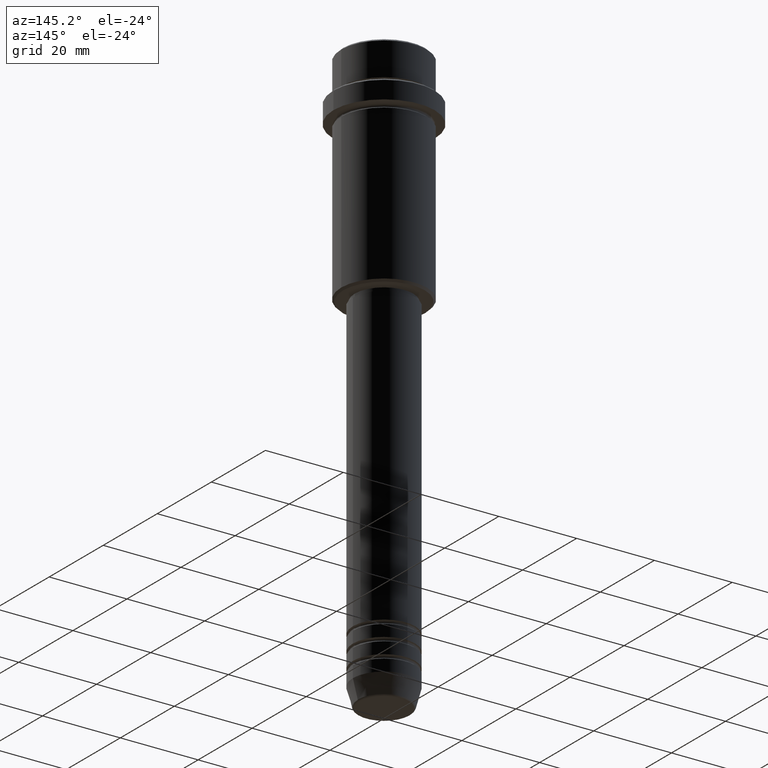
[diagram: clean part render]
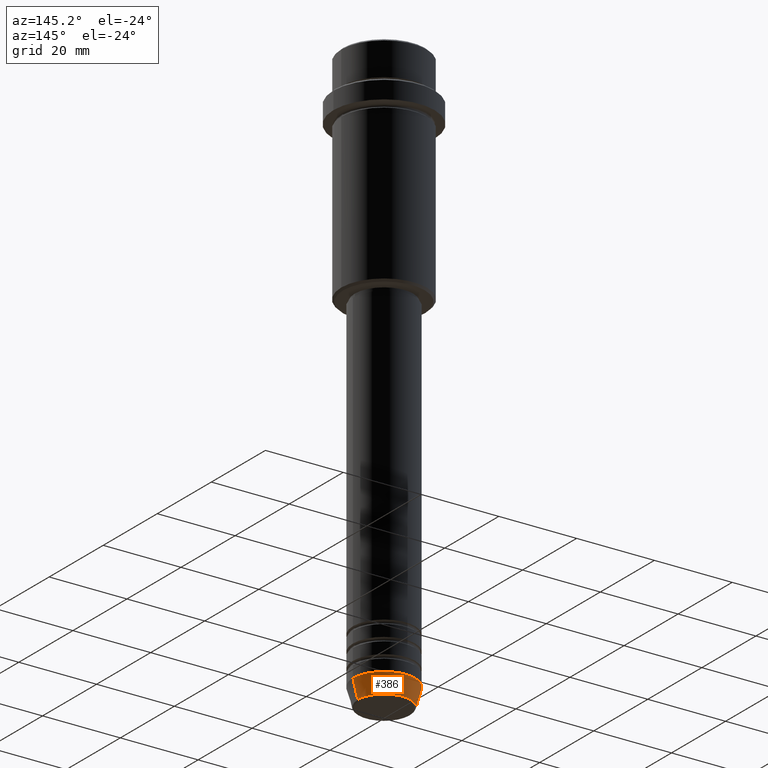
[diagram: same view with one face highlighted and labeled with its STEP entity id]
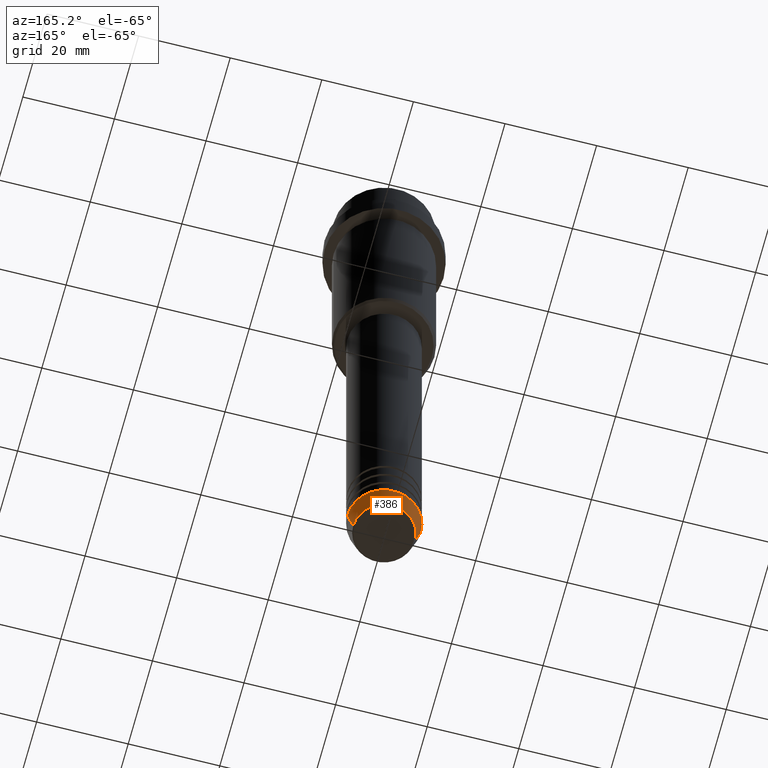
[diagram: same view with one face highlighted and labeled with its STEP entity id]
A machine part, auxiliary view. The second image highlights one B-rep face of the part: STEP entity #386.
A second angle (auxiliary view) of the same face is appended — the face is thin or edge-on in the first view.
In plain terms, the highlighted conical surface has half-angle 15 deg.
Its self-contained STEP definition (entity closure, byte-faithful):
#19 = LINE ( 'NONE', #461, #178 ) ;
#51 = ORIENTED_EDGE ( 'NONE', *, *, #233, .F. ) ;
#52 = CARTESIAN_POINT ( 'NONE',  ( 0.000000000000000000, 0.000000000000000000, -145.0000000000000284 ) ) ;
#66 = CARTESIAN_POINT ( 'NONE',  ( 8.000000000000000000, 0.000000000000000000, -145.0000000000000284 ) ) ;
#87 = DIRECTION ( 'NONE',  ( -0.000000000000000000, -0.000000000000000000, 1.000000000000000000 ) ) ;
#157 = EDGE_LOOP ( 'NONE', ( #243, #953, #299, #51 ) ) ;
#174 = VERTEX_POINT ( 'NONE', #66 ) ;
#178 = VECTOR ( 'NONE', #1218, 1000.000000000000000 ) ;
#233 = EDGE_CURVE ( 'NONE', #520, #174, #19, .T. ) ;
#243 = ORIENTED_EDGE ( 'NONE', *, *, #1315, .T. ) ;
#255 = CARTESIAN_POINT ( 'NONE',  ( -8.000000000000000000, 9.797174393178825657E-16, -145.0000000000000284 ) ) ;
#283 = FACE_OUTER_BOUND ( 'NONE', #157, .T. ) ;
#299 = ORIENTED_EDGE ( 'NONE', *, *, #684, .F. ) ;
#370 = EDGE_CURVE ( 'NONE', #1063, #970, #376, .T. ) ;
#376 = LINE ( 'NONE', #255, #1141 ) ;
#386 = ADVANCED_FACE ( 'NONE', ( #283 ), #851, .T. ) ;
#409 = CIRCLE ( 'NONE', #1333, 8.000000000000000000 ) ;
#412 = CARTESIAN_POINT ( 'NONE',  ( 0.000000000000000000, 0.000000000000000000, -149.6294095225512706 ) ) ;
#418 = CARTESIAN_POINT ( 'NONE',  ( 0.000000000000000000, 0.000000000000000000, -145.0000000000000284 ) ) ;
#458 = CIRCLE ( 'NONE', #676, 6.759553456999433330 ) ;
#461 = CARTESIAN_POINT ( 'NONE',  ( 8.000000000000000000, 0.000000000000000000, -145.0000000000000284 ) ) ;
#520 = VERTEX_POINT ( 'NONE', #690 ) ;
#528 = DIRECTION ( 'NONE',  ( 1.000000000000000000, 0.000000000000000000, 0.000000000000000000 ) ) ;
#676 = AXIS2_PLACEMENT_3D ( 'NONE', #412, #1064, #528 ) ;
#684 = EDGE_CURVE ( 'NONE', #174, #970, #409, .T. ) ;
#690 = CARTESIAN_POINT ( 'NONE',  ( 6.759553456999433330, 0.000000000000000000, -149.6294095225512706 ) ) ;
#734 = DIRECTION ( 'NONE',  ( 1.000000000000000000, 0.000000000000000000, 0.000000000000000000 ) ) ;
#849 = CARTESIAN_POINT ( 'NONE',  ( -6.759553456999433330, 9.037619948979304241E-16, -149.6294095225512706 ) ) ;
#851 = CONICAL_SURFACE ( 'NONE', #1209, 8.000000000000000000, 0.2617993877991500740 ) ;
#953 = ORIENTED_EDGE ( 'NONE', *, *, #370, .T. ) ;
#964 = CARTESIAN_POINT ( 'NONE',  ( -8.000000000000000000, 9.797174393178825657E-16, -145.0000000000000284 ) ) ;
#970 = VERTEX_POINT ( 'NONE', #964 ) ;
#1063 = VERTEX_POINT ( 'NONE', #849 ) ;
#1064 = DIRECTION ( 'NONE',  ( -0.000000000000000000, -0.000000000000000000, 1.000000000000000000 ) ) ;
#1141 = VECTOR ( 'NONE', #1181, 1000.000000000000000 ) ;
#1181 = DIRECTION ( 'NONE',  ( -0.2588190451025213501, 3.169619151431772337E-17, 0.9659258262890680902 ) ) ;
#1209 = AXIS2_PLACEMENT_3D ( 'NONE', #418, #87, #734 ) ;
#1218 = DIRECTION ( 'NONE',  ( 0.2588190451025213501, 0.000000000000000000, 0.9659258262890680902 ) ) ;
#1244 = DIRECTION ( 'NONE',  ( 1.000000000000000000, 0.000000000000000000, 0.000000000000000000 ) ) ;
#1252 = DIRECTION ( 'NONE',  ( -0.000000000000000000, -0.000000000000000000, 1.000000000000000000 ) ) ;
#1315 = EDGE_CURVE ( 'NONE', #520, #1063, #458, .T. ) ;
#1333 = AXIS2_PLACEMENT_3D ( 'NONE', #52, #1252, #1244 ) ;